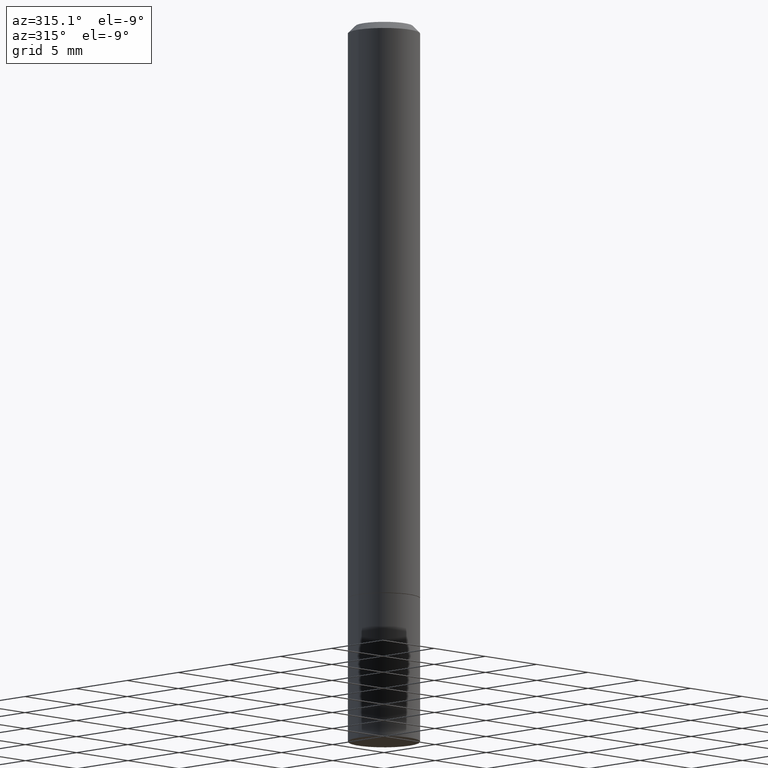
[diagram: clean part render]
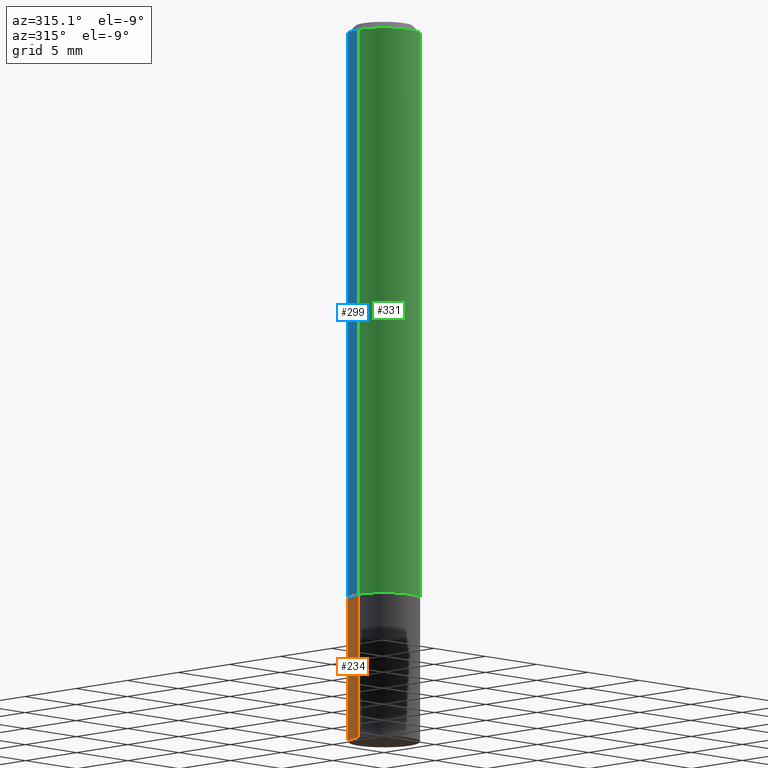
[diagram: same view with three faces highlighted in distinct colors, each labeled with its STEP entity id]
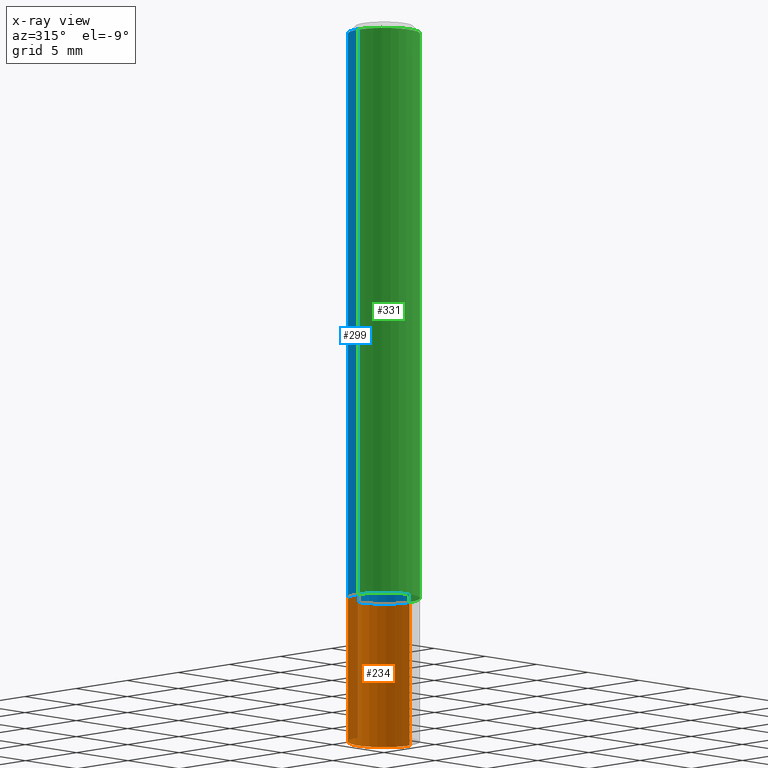
[diagram: x-ray of the same camera — body ghosted, the three highlighted faces saturated]
A machine part, auxiliary view with three faces highlighted in distinct colors.
The next image is the same camera in x-ray (body ghosted, the three faces saturated) — at least one of them is partly hidden behind the body in this view.
Their STEP definitions:

[orange] entity #234 — the highlighted cylindrical surface (edge-blend (fillet) strip) has radius 2.5006 mm, axis along (-0, 0, 1).
#47 = DIRECTION ( 'NONE',  ( -2.445468806185136597E-29, 3.491481338843145583E-15, 1.000000000000000000 ) ) ;
#55 = CIRCLE ( 'NONE', #364, 0.09844999999999999585 ) ;
#58 = EDGE_LOOP ( 'NONE', ( #194, #141, #259, #114 ) ) ;
#59 = DIRECTION ( 'NONE',  ( -2.445468806185136877E-29, 3.491481338843145188E-15, 1.000000000000000000 ) ) ;
#60 = VERTEX_POINT ( 'NONE', #267 ) ;
#67 = CYLINDRICAL_SURFACE ( 'NONE', #286, 0.09844999999999999585 ) ;
#76 = VECTOR ( 'NONE', #59, 39.37007874015748143 ) ;
#78 = VERTEX_POINT ( 'NONE', #85 ) ;
#79 = DIRECTION ( 'NONE',  ( 1.000000000000000000, -6.982962677686265922E-15, 0.000000000000000000 ) ) ;
#85 = CARTESIAN_POINT ( 'NONE',  ( 0.09844999999999999585, -7.560453691130944267E-15, -1.968500000000000139 ) ) ;
#89 = VECTOR ( 'NONE', #193, 39.37007874015748143 ) ;
#96 = CARTESIAN_POINT ( 'NONE',  ( 0.09844999999999999585, -6.874726756182129545E-16, 4.800596035771099214E-30 ) ) ;
#106 = VERTEX_POINT ( 'NONE', #346 ) ;
#114 = ORIENTED_EDGE ( 'NONE', *, *, #265, .F. ) ;
#125 = DIRECTION ( 'NONE',  ( 1.000000000000000000, -6.982962677686266711E-15, 4.876176775795936353E-29 ) ) ;
#126 = CARTESIAN_POINT ( 'NONE',  ( -0.09844999999999999585, -5.486153590605640426E-15, -1.574800000000000200 ) ) ;
#127 = CARTESIAN_POINT ( 'NONE',  ( 3.851124275980353356E-29, -5.498384812410186155E-15, -1.574800000000000200 ) ) ;
#141 = ORIENTED_EDGE ( 'NONE', *, *, #324, .T. ) ;
#156 = DIRECTION ( 'NONE',  ( 1.000000000000000000, -6.982962677686265922E-15, 0.000000000000000000 ) ) ;
#162 = EDGE_CURVE ( 'NONE', #106, #313, #55, .T. ) ;
#190 = FACE_OUTER_BOUND ( 'NONE', #58, .T. ) ;
#193 = DIRECTION ( 'NONE',  ( -2.445468806185136877E-29, 3.491481338843145188E-15, 1.000000000000000000 ) ) ;
#194 = ORIENTED_EDGE ( 'NONE', *, *, #322, .T. ) ;
#234 = ADVANCED_FACE ( 'NONE', ( #190 ), #67, .T. ) ;
#243 = CIRCLE ( 'NONE', #337, 0.09844999999999999585 ) ;
#249 = CARTESIAN_POINT ( 'NONE',  ( 4.813905344975441835E-29, -6.872981015512731707E-15, -1.968500000000000139 ) ) ;
#259 = ORIENTED_EDGE ( 'NONE', *, *, #162, .F. ) ;
#265 = EDGE_CURVE ( 'NONE', #78, #106, #353, .T. ) ;
#267 = CARTESIAN_POINT ( 'NONE',  ( -0.09844999999999999585, -5.486153590605640426E-15, -1.968500000000000139 ) ) ;
#283 = CARTESIAN_POINT ( 'NONE',  ( 0.000000000000000000, 0.000000000000000000, 0.000000000000000000 ) ) ;
#286 = AXIS2_PLACEMENT_3D ( 'NONE', #283, #306, #125 ) ;
#288 = LINE ( 'NONE', #291, #76 ) ;
#291 = CARTESIAN_POINT ( 'NONE',  ( -0.09844999999999999585, 6.995293233558186035E-16, -4.842691596355954042E-30 ) ) ;
#306 = DIRECTION ( 'NONE',  ( -2.445468806185136597E-29, 3.491481338843145583E-15, 1.000000000000000000 ) ) ;
#313 = VERTEX_POINT ( 'NONE', #126 ) ;
#322 = EDGE_CURVE ( 'NONE', #78, #60, #243, .T. ) ;
#324 = EDGE_CURVE ( 'NONE', #60, #313, #288, .T. ) ;
#337 = AXIS2_PLACEMENT_3D ( 'NONE', #249, #350, #79 ) ;
#346 = CARTESIAN_POINT ( 'NONE',  ( 0.09844999999999999585, -6.185857488028398715E-15, -1.574800000000000200 ) ) ;
#350 = DIRECTION ( 'NONE',  ( -2.445468806185136597E-29, 3.491481338843145583E-15, 1.000000000000000000 ) ) ;
#353 = LINE ( 'NONE', #96, #89 ) ;
#364 = AXIS2_PLACEMENT_3D ( 'NONE', #127, #47, #156 ) ;

[blue] entity #299 — the highlighted cylindrical surface (edge-blend (fillet) strip) has radius 2.5006 mm, axis along (-0, 0, 1).
#1 = DIRECTION ( 'NONE',  ( -2.445468806185136597E-29, 3.491481338843145583E-15, 1.000000000000000000 ) ) ;
#10 = CARTESIAN_POINT ( 'NONE',  ( 4.890937612370278413E-31, -6.982962677686297772E-17, -0.02000000000000002123 ) ) ;
#20 = FACE_OUTER_BOUND ( 'NONE', #53, .T. ) ;
#21 = CARTESIAN_POINT ( 'NONE',  ( -0.09844999999999999585, -2.082832155568281168E-15, -1.573800000000000088 ) ) ;
#35 = LINE ( 'NONE', #317, #188 ) ;
#53 = EDGE_LOOP ( 'NONE', ( #175, #167, #144, #336 ) ) ;
#57 = CARTESIAN_POINT ( 'NONE',  ( 3.848678807174168313E-29, -5.494893331071342359E-15, -1.573800000000000088 ) ) ;
#63 = LINE ( 'NONE', #147, #164 ) ;
#66 = EDGE_CURVE ( 'NONE', #196, #192, #63, .T. ) ;
#91 = EDGE_CURVE ( 'NONE', #307, #252, #35, .T. ) ;
#95 = AXIS2_PLACEMENT_3D ( 'NONE', #10, #1, #241 ) ;
#103 = DIRECTION ( 'NONE',  ( 1.000000000000000000, -6.982962677686266711E-15, 4.876176775795936353E-29 ) ) ;
#104 = EDGE_CURVE ( 'NONE', #252, #192, #171, .T. ) ;
#118 = DIRECTION ( 'NONE',  ( -2.445468806185136877E-29, 3.491481338843145188E-15, 1.000000000000000000 ) ) ;
#144 = ORIENTED_EDGE ( 'NONE', *, *, #104, .F. ) ;
#147 = CARTESIAN_POINT ( 'NONE',  ( -0.09844999999999988483, 6.995293233558178146E-16, -4.842691596355949137E-30 ) ) ;
#164 = VECTOR ( 'NONE', #118, 39.37007874015748143 ) ;
#167 = ORIENTED_EDGE ( 'NONE', *, *, #66, .T. ) ;
#171 = CIRCLE ( 'NONE', #95, 0.09844999999999978768 ) ;
#175 = ORIENTED_EDGE ( 'NONE', *, *, #360, .T. ) ;
#181 = AXIS2_PLACEMENT_3D ( 'NONE', #185, #302, #103 ) ;
#185 = CARTESIAN_POINT ( 'NONE',  ( 0.000000000000000000, 0.000000000000000000, 0.000000000000000000 ) ) ;
#188 = VECTOR ( 'NONE', #272, 39.37007874015748143 ) ;
#192 = VERTEX_POINT ( 'NONE', #221 ) ;
#196 = VERTEX_POINT ( 'NONE', #21 ) ;
#199 = AXIS2_PLACEMENT_3D ( 'NONE', #57, #359, #227 ) ;
#221 = CARTESIAN_POINT ( 'NONE',  ( -0.09844999999999978768, 6.176430488413484730E-16, -0.02000000000000002123 ) ) ;
#225 = CARTESIAN_POINT ( 'NONE',  ( 0.09844999999999999585, -6.182366006689555708E-15, -1.573800000000000088 ) ) ;
#227 = DIRECTION ( 'NONE',  ( 1.000000000000000000, -6.982962677686265922E-15, 0.000000000000000000 ) ) ;
#241 = DIRECTION ( 'NONE',  ( 1.000000000000000000, -6.982962677686266711E-15, 0.000000000000000000 ) ) ;
#251 = CARTESIAN_POINT ( 'NONE',  ( 0.09844999999999978768, -7.452456546574688288E-16, -0.02000000000000002123 ) ) ;
#252 = VERTEX_POINT ( 'NONE', #251 ) ;
#272 = DIRECTION ( 'NONE',  ( -2.445468806185136877E-29, 3.491481338843145188E-15, 1.000000000000000000 ) ) ;
#299 = ADVANCED_FACE ( 'NONE', ( #20 ), #356, .T. ) ;
#302 = DIRECTION ( 'NONE',  ( -2.445468806185136597E-29, 3.491481338843145583E-15, 1.000000000000000000 ) ) ;
#307 = VERTEX_POINT ( 'NONE', #225 ) ;
#317 = CARTESIAN_POINT ( 'NONE',  ( 0.09844999999999988483, -6.874726756182121656E-16, 4.800596035771093609E-30 ) ) ;
#336 = ORIENTED_EDGE ( 'NONE', *, *, #91, .F. ) ;
#356 = CYLINDRICAL_SURFACE ( 'NONE', #181, 0.09844999999999988483 ) ;
#359 = DIRECTION ( 'NONE',  ( -2.445468806185136597E-29, 3.491481338843145583E-15, 1.000000000000000000 ) ) ;
#360 = EDGE_CURVE ( 'NONE', #307, #196, #365, .T. ) ;
#365 = CIRCLE ( 'NONE', #199, 0.09844999999999999585 ) ;

[green] entity #331 — the highlighted cylindrical surface (edge-blend (fillet) strip) has radius 2.5006 mm, axis along (-0, 0, 1).
#21 = CARTESIAN_POINT ( 'NONE',  ( -0.09844999999999999585, -2.082832155568281168E-15, -1.573800000000000088 ) ) ;
#25 = DIRECTION ( 'NONE',  ( 1.000000000000000000, -6.982962677686266711E-15, 4.876176775795936353E-29 ) ) ;
#30 = CYLINDRICAL_SURFACE ( 'NONE', #90, 0.09844999999999988483 ) ;
#32 = EDGE_CURVE ( 'NONE', #196, #307, #253, .T. ) ;
#35 = LINE ( 'NONE', #317, #188 ) ;
#42 = DIRECTION ( 'NONE',  ( 1.000000000000000000, -6.982962677686265922E-15, 0.000000000000000000 ) ) ;
#49 = DIRECTION ( 'NONE',  ( 1.000000000000000000, -6.982962677686266711E-15, 0.000000000000000000 ) ) ;
#63 = LINE ( 'NONE', #147, #164 ) ;
#66 = EDGE_CURVE ( 'NONE', #196, #192, #63, .T. ) ;
#84 = AXIS2_PLACEMENT_3D ( 'NONE', #318, #240, #42 ) ;
#90 = AXIS2_PLACEMENT_3D ( 'NONE', #268, #204, #25 ) ;
#91 = EDGE_CURVE ( 'NONE', #307, #252, #35, .T. ) ;
#118 = DIRECTION ( 'NONE',  ( -2.445468806185136877E-29, 3.491481338843145188E-15, 1.000000000000000000 ) ) ;
#147 = CARTESIAN_POINT ( 'NONE',  ( -0.09844999999999988483, 6.995293233558178146E-16, -4.842691596355949137E-30 ) ) ;
#159 = CARTESIAN_POINT ( 'NONE',  ( 4.890937612370278413E-31, -6.982962677686297772E-17, -0.02000000000000002123 ) ) ;
#164 = VECTOR ( 'NONE', #118, 39.37007874015748143 ) ;
#188 = VECTOR ( 'NONE', #272, 39.37007874015748143 ) ;
#192 = VERTEX_POINT ( 'NONE', #221 ) ;
#196 = VERTEX_POINT ( 'NONE', #21 ) ;
#200 = ORIENTED_EDGE ( 'NONE', *, *, #32, .T. ) ;
#204 = DIRECTION ( 'NONE',  ( -2.445468806185136597E-29, 3.491481338843145583E-15, 1.000000000000000000 ) ) ;
#221 = CARTESIAN_POINT ( 'NONE',  ( -0.09844999999999978768, 6.176430488413484730E-16, -0.02000000000000002123 ) ) ;
#223 = DIRECTION ( 'NONE',  ( -2.445468806185136597E-29, 3.491481338843145583E-15, 1.000000000000000000 ) ) ;
#225 = CARTESIAN_POINT ( 'NONE',  ( 0.09844999999999999585, -6.182366006689555708E-15, -1.573800000000000088 ) ) ;
#228 = ORIENTED_EDGE ( 'NONE', *, *, #271, .F. ) ;
#232 = FACE_OUTER_BOUND ( 'NONE', #366, .T. ) ;
#240 = DIRECTION ( 'NONE',  ( -2.445468806185136597E-29, 3.491481338843145583E-15, 1.000000000000000000 ) ) ;
#251 = CARTESIAN_POINT ( 'NONE',  ( 0.09844999999999978768, -7.452456546574688288E-16, -0.02000000000000002123 ) ) ;
#252 = VERTEX_POINT ( 'NONE', #251 ) ;
#253 = CIRCLE ( 'NONE', #84, 0.09844999999999999585 ) ;
#268 = CARTESIAN_POINT ( 'NONE',  ( 0.000000000000000000, 0.000000000000000000, 0.000000000000000000 ) ) ;
#271 = EDGE_CURVE ( 'NONE', #192, #252, #304, .T. ) ;
#272 = DIRECTION ( 'NONE',  ( -2.445468806185136877E-29, 3.491481338843145188E-15, 1.000000000000000000 ) ) ;
#285 = ORIENTED_EDGE ( 'NONE', *, *, #66, .F. ) ;
#304 = CIRCLE ( 'NONE', #347, 0.09844999999999978768 ) ;
#307 = VERTEX_POINT ( 'NONE', #225 ) ;
#317 = CARTESIAN_POINT ( 'NONE',  ( 0.09844999999999988483, -6.874726756182121656E-16, 4.800596035771093609E-30 ) ) ;
#318 = CARTESIAN_POINT ( 'NONE',  ( 3.848678807174168313E-29, -5.494893331071342359E-15, -1.573800000000000088 ) ) ;
#331 = ADVANCED_FACE ( 'NONE', ( #232 ), #30, .T. ) ;
#347 = AXIS2_PLACEMENT_3D ( 'NONE', #159, #223, #49 ) ;
#363 = ORIENTED_EDGE ( 'NONE', *, *, #91, .T. ) ;
#366 = EDGE_LOOP ( 'NONE', ( #285, #200, #363, #228 ) ) ;